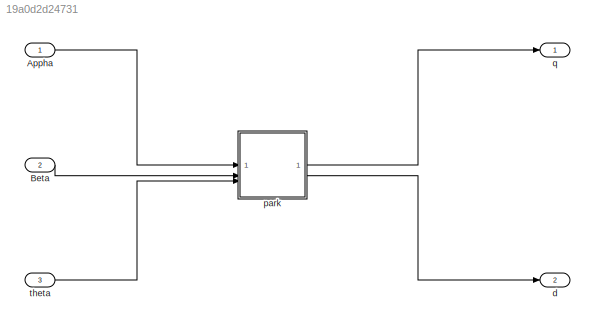
MODEL slx_19a0d2d24731
KIND model
CONFIG AbsTol = auto
CONFIG EnableMultiTasking = off
CONFIG FixedStep = auto
CONFIG MaxStep = auto
CONFIG MinStep = auto
CONFIG RelTol = 1e-3
CONFIG SampleTimeConstraint = Unconstrained
CONFIG SolverName = VariableStepAuto
CONFIG StartTime = 0.0
CONFIG StopTime = 10.0
BLOCK [Inport] Appha
BLOCK [Inport] Beta
  Port = 2
BLOCK [Outport] d
  Port = 2
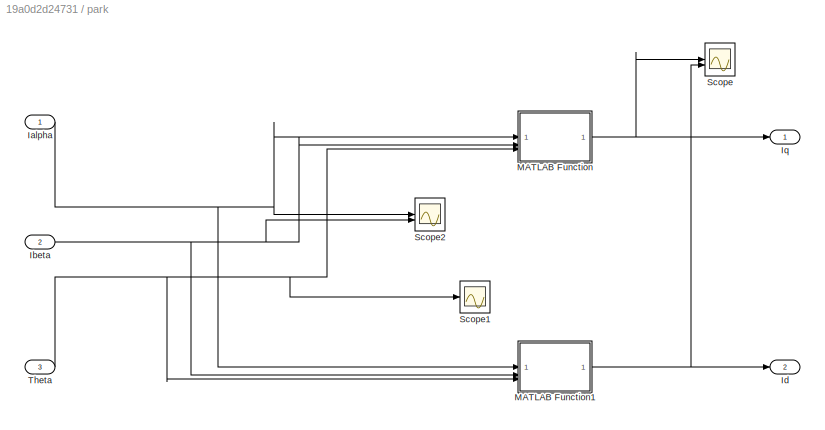
BLOCK [SubSystem] park
BLOCK [Inport] park/Ialpha
BLOCK [Inport] park/Ibeta
  Port = 2
BLOCK [Outport] park/Id
  Port = 2
BLOCK [Outport] park/Iq
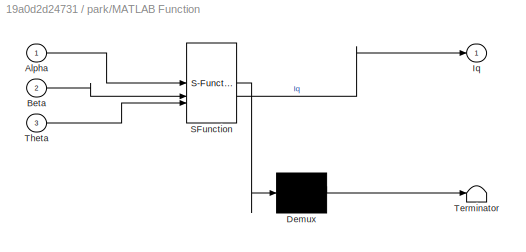
BLOCK [SubSystem] park/MATLAB Function
  ErrorFcn = Stateflow.Translate.translate
  LibrarySourceBlock = simulink/User-Defined\nFunctions/MATLAB Function
  PermitHierarchicalResolution = ExplicitOnly
  SFBlockType = MATLAB Function
  TreatAsAtomicUnit = on
BLOCK [Demux] park/MATLAB Function/ Demux 
  Outputs = 1
BLOCK [S-Function] park/MATLAB Function/ SFunction 
  EnableBusSupport = on
  FunctionName = sf_sfun
  PortCounts = [3 2]
  SFcnIsStateOwnerBlock = off
  SFunctionDeploymentMode = off
  Tag = Stateflow S-Function 8
BLOCK [Terminator] park/MATLAB Function/ Terminator 
BLOCK [Inport] park/MATLAB Function/Alpha
BLOCK [Inport] park/MATLAB Function/Beta
  Port = 2
BLOCK [Outport] park/MATLAB Function/Iq
BLOCK [Inport] park/MATLAB Function/Theta
  Port = 3
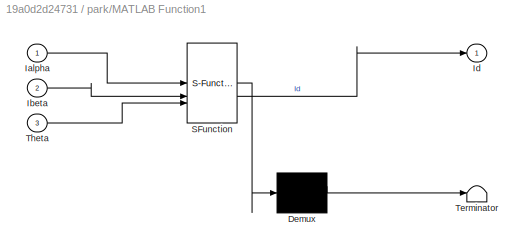
BLOCK [SubSystem] park/MATLAB Function1
  ErrorFcn = Stateflow.Translate.translate
  LibrarySourceBlock = simulink/User-Defined\nFunctions/MATLAB Function
  PermitHierarchicalResolution = ExplicitOnly
  SFBlockType = MATLAB Function
  TreatAsAtomicUnit = on
BLOCK [Demux] park/MATLAB Function1/ Demux 
  Outputs = 1
BLOCK [S-Function] park/MATLAB Function1/ SFunction 
  EnableBusSupport = on
  FunctionName = sf_sfun
  PortCounts = [3 2]
  SFcnIsStateOwnerBlock = off
  SFunctionDeploymentMode = off
  Tag = Stateflow S-Function 9
BLOCK [Terminator] park/MATLAB Function1/ Terminator 
BLOCK [Inport] park/MATLAB Function1/Ialpha
BLOCK [Inport] park/MATLAB Function1/Ibeta
  Port = 2
BLOCK [Outport] park/MATLAB Function1/Id
BLOCK [Inport] park/MATLAB Function1/Theta
  Port = 3
BLOCK [Scope] park/Scope
  Floating = off
  NumInputPorts = 2
  ScopeSpecificationString = Simulink.scopes.TimeScopeBlockCfg('CurrentConfiguration', extmgr.ConfigurationSet(extmgr.Configuration('Core','General UI',true),extmgr.Configuration('Core','Source UI',true),extmgr.Configuration('Sources','WiredSimulink',true,'DataLoggingVariableName','ScopeData6'),extmgr.Configuration('Visuals','Time Domain',true,'SerializedDisplays',{struct('MinYLimReal','-1.875','MaxYLimReal','1.875','YLabelRe...<+1458ch>
BLOCK [Scope] park/Scope1
  Floating = off
  NumInputPorts = 1
  ScopeSpecificationString = Simulink.scopes.TimeScopeBlockCfg('CurrentConfiguration', extmgr.ConfigurationSet(extmgr.Configuration('Core','General UI',true),extmgr.Configuration('Core','Source UI',true),extmgr.Configuration('Sources','WiredSimulink',true,'DataLoggingVariableName','ScopeData7'),extmgr.Configuration('Visuals','Time Domain',true,'SerializedDisplays',{struct('MinYLimReal','-44.99955','MaxYLimReal','404.99595','Y...<+1451ch>
BLOCK [Scope] park/Scope2
  Floating = off
  NumInputPorts = 2
  ScopeSpecificationString = Simulink.scopes.TimeScopeBlockCfg('CurrentConfiguration', extmgr.ConfigurationSet(extmgr.Configuration('Core','General UI',true),extmgr.Configuration('Core','Source UI',true),extmgr.Configuration('Sources','WiredSimulink',true,'DataLoggingVariableName','ScopeData8','SampleTime','1e-6'),extmgr.Configuration('Visuals','Time Domain',true,'SerializedDisplays',{struct('MinYLimReal','-1.875','MaxYLimRea...<+1456ch>
BLOCK [Inport] park/Theta
  Port = 3
BLOCK [Outport] q
BLOCK [Inport] theta
  Port = 3
LINE Appha:1 -> park:1
LINE Beta:1 -> park:2
NET park/Ialpha:1 -> park/MATLAB Function1:1, park/MATLAB Function:1, park/Scope2:1
NET park/Ibeta:1 -> park/MATLAB Function1:2, park/MATLAB Function:2, park/Scope2:2
NET park/MATLAB Function1:1 -> park/Id:1, park/Scope:2
NET park/MATLAB Function:1 -> park/Iq:1, park/Scope:1
NET park/Theta:1 -> park/MATLAB Function1:3, park/MATLAB Function:3, park/Scope1:1
LINE park:1 -> q:1
LINE park:2 -> d:1
LINE theta:1 -> park:3
note: NET lines group one-source signal fan-out (src -> all destinations, sorted); 1:1 wires keep LINE
CHART park/MATLAB Function1 states=1 transitions=1
  STATE_LABEL 'eML_blk_kernel()'
  STATE_LABEL 'SCRIPT:\nfunction Id = fcn(Ialpha, Ibeta, Theta)\n\nId = Ialpha * cosd(Theta) + Ibeta * sind(Theta);'
CHART park/MATLAB Function states=1 transitions=1
  STATE_LABEL 'eML_blk_kernel()'
  STATE_LABEL 'SCRIPT:\nfunction Iq = fcn(Alpha, Beta, Theta)\n\nIq = -Alpha * sind(Theta) + Beta * cosd(Theta);'
CHART  states=0 transitions=0
CHART  states=0 transitions=0
